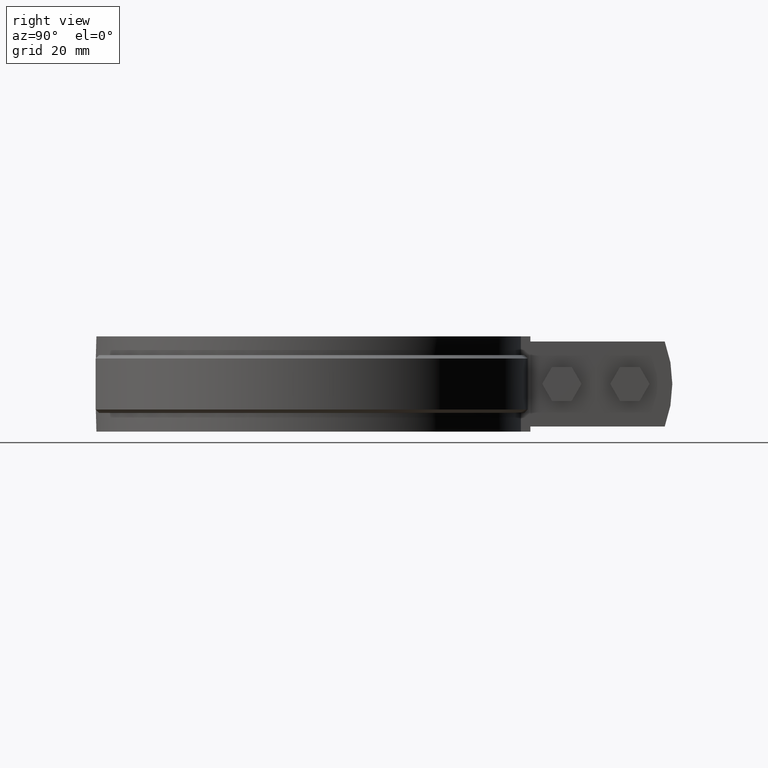
[diagram: clean part render]
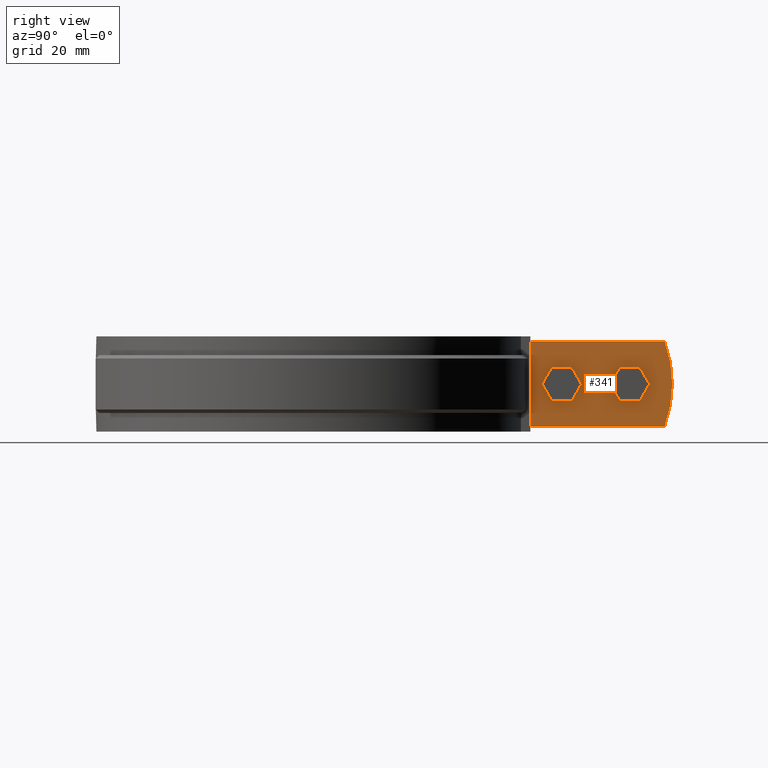
[diagram: same view with one face highlighted and labeled with its STEP entity id]
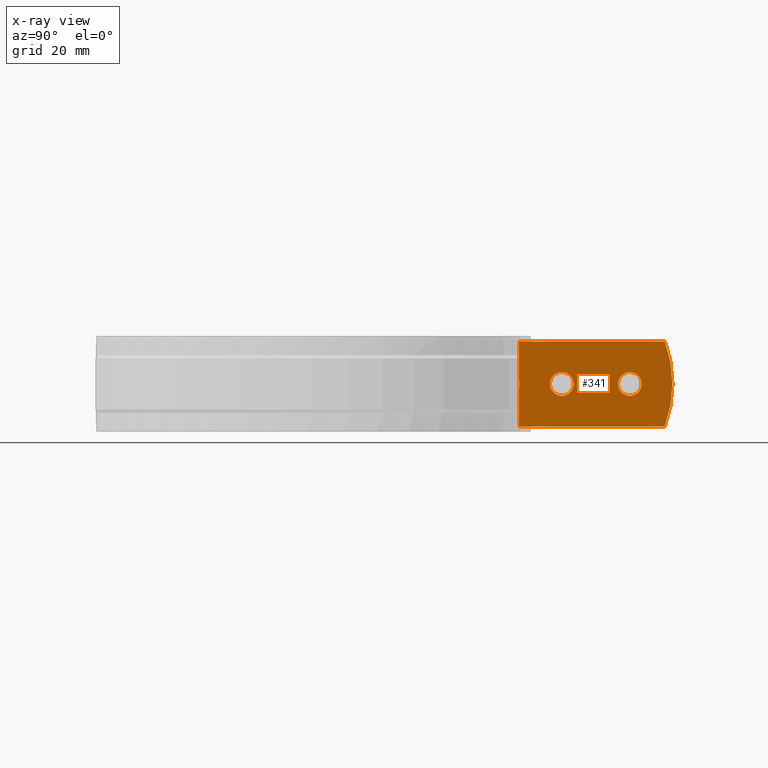
[diagram: x-ray of the same camera — body ghosted, the highlighted face saturated]
A machine part, right view. The second image highlights one B-rep face of the part: STEP entity #341.
The next image is the same camera in x-ray: the body ghosted, the highlighted face saturated — about 0% of this face is hidden behind the body in this view.
In plain terms, the highlighted planar face has unit normal (1, 0, 0).
Its self-contained STEP definition (entity closure, byte-faithful):
#341 = ADVANCED_FACE( '', ( #562, #563, #564 ), #565, .T. );
#562 = FACE_OUTER_BOUND( '', #1157, .T. );
#563 = FACE_BOUND( '', #1158, .T. );
#564 = FACE_BOUND( '', #1159, .T. );
#565 = PLANE( '', #1160 );
#1157 = EDGE_LOOP( '', ( #2319, #2320, #2321, #2322, #2323, #2324 ) );
#1158 = EDGE_LOOP( '', ( #2325 ) );
#1159 = EDGE_LOOP( '', ( #2326 ) );
#1160 = AXIS2_PLACEMENT_3D( '', #2327, #2328, #2329 );
#2319 = ORIENTED_EDGE( '', *, *, #3983, .F. );
#2320 = ORIENTED_EDGE( '', *, *, #3973, .F. );
#2321 = ORIENTED_EDGE( '', *, *, #3898, .T. );
#2322 = ORIENTED_EDGE( '', *, *, #3910, .T. );
#2323 = ORIENTED_EDGE( '', *, *, #3926, .F. );
#2324 = ORIENTED_EDGE( '', *, *, #3956, .F. );
#2325 = ORIENTED_EDGE( '', *, *, #3984, .T. );
#2326 = ORIENTED_EDGE( '', *, *, #3980, .T. );
#2327 = CARTESIAN_POINT( '', ( 5.00000000000000, 61.7545342464827, -12.5000000000000 ) );
#2328 = DIRECTION( '', ( 1.00000000000000, 2.34067589742701E-049, 3.79805155346016E-033 ) );
#2329 = DIRECTION( '', ( 0.000000000000000, 1.00000000000000, -6.16283340149655E-017 ) );
#3898 = EDGE_CURVE( '', #4398, #4396, #4399, .T. );
#3910 = EDGE_CURVE( '', #4396, #4417, #4419, .T. );
#3926 = EDGE_CURVE( '', #4447, #4417, #4449, .F. );
#3956 = EDGE_CURVE( '', #4501, #4447, #4503, .T. );
#3973 = EDGE_CURVE( '', #4398, #4527, #4529, .T. );
#3980 = EDGE_CURVE( '', #4540, #4540, #4541, .F. );
#3983 = EDGE_CURVE( '', #4527, #4501, #4544, .T. );
#3984 = EDGE_CURVE( '', #4545, #4545, #4546, .F. );
#4396 = VERTEX_POINT( '', #5209 );
#4398 = VERTEX_POINT( '', #5212 );
#4399 = LINE( '', #5213, #5214 );
#4417 = VERTEX_POINT( '', #5398 );
#4419 = CIRCLE( '', #5401, 36.0000000000000 );
#4447 = VERTEX_POINT( '', #5523 );
#4449 = LINE( '', #5525, #5526 );
#4501 = VERTEX_POINT( '', #5971 );
#4503 = LINE( '', #5988, #5989 );
#4527 = VERTEX_POINT( '', #6064 );
#4529 = LINE( '', #6081, #6082 );
#4540 = VERTEX_POINT( '', #6155 );
#4541 = CIRCLE( '', #6156, 3.50000000000000 );
#4544 = B_SPLINE_CURVE_WITH_KNOTS( '', 3, ( #6193, #6194, #6195, #6196, #6197, #6198, #6199, #6200 ), .UNSPECIFIED., .F., .F., ( 4, 2, 2, 4 ), ( 2.60208521396521E-018, 0.00149837378309849, 0.00224756067464773, 0.00299674756619698 ), .UNSPECIFIED. );
#4545 = VERTEX_POINT( '', #6201 );
#4546 = CIRCLE( '', #6202, 3.50000000000000 );
#5209 = CARTESIAN_POINT( '', ( 5.00000000000000, 104.662009613637, -12.5000000000000 ) );
#5212 = CARTESIAN_POINT( '', ( 5.00000000000000, 61.7545342464827, -12.5000000000000 ) );
#5213 = CARTESIAN_POINT( '', ( 5.00000000000000, 61.7545342464827, -12.5000000000000 ) );
#5214 = VECTOR( '', #8054, 1000.00000000000 );
#5398 = CARTESIAN_POINT( '', ( 5.00000000000000, 104.662009613637, 12.5000000000000 ) );
#5401 = AXIS2_PLACEMENT_3D( '', #8070, #8071, #8072 );
#5523 = CARTESIAN_POINT( '', ( 5.00000000000000, 61.7545342464827, 12.5000000000000 ) );
#5525 = CARTESIAN_POINT( '', ( 5.00000000000000, 61.7545342464827, 12.5000000000000 ) );
#5526 = VECTOR( '', #8091, 1000.00000000000 );
#5971 = CARTESIAN_POINT( '', ( 5.00000000000000, 61.7545342464827, 1.49291615203442 ) );
#5988 = CARTESIAN_POINT( '', ( 5.00000000000000, 61.7545342464827, -12.5000000000000 ) );
#5989 = VECTOR( '', #8123, 1000.00000000000 );
#6064 = CARTESIAN_POINT( '', ( 5.00000000000000, 61.7545342464827, -1.49291615203029 ) );
#6081 = CARTESIAN_POINT( '', ( 5.00000000000000, 61.7545342464827, -12.5000000000000 ) );
#6082 = VECTOR( '', #8144, 1000.00000000000 );
#6155 = CARTESIAN_POINT( '', ( 5.00000000000000, 74.4018259648470, -3.50000000000000 ) );
#6156 = AXIS2_PLACEMENT_3D( '', #8145, #8146, #8147 );
#6193 = CARTESIAN_POINT( '', ( 5.00000000000000, 61.7545342464827, -1.49291615203029 ) );
#6194 = CARTESIAN_POINT( '', ( 5.00000000000001, 61.8820440775209, -1.00264306649014 ) );
#6195 = CARTESIAN_POINT( '', ( 4.99999999999999, 61.9470027373306, -0.506944265545390 ) );
#6196 = CARTESIAN_POINT( '', ( 4.99999999999999, 61.9477448830672, 0.244991374826574 ) );
#6197 = CARTESIAN_POINT( '', ( 5.00000000000000, 61.9313736301201, 0.498454618103373 ) );
#6198 = CARTESIAN_POINT( '', ( 5.00000000000000, 61.8665441762539, 0.999736569771089 ) );
#6199 = CARTESIAN_POINT( '', ( 5.00000000000000, 61.8183196193486, 1.24766250129482 ) );
#6200 = CARTESIAN_POINT( '', ( 5.00000000000000, 61.7545342464827, 1.49291615203441 ) );
#6201 = CARTESIAN_POINT( '', ( 5.00000000000000, 94.4018259648470, -3.50000000000000 ) );
#6202 = AXIS2_PLACEMENT_3D( '', #8149, #8150, #8151 );
#8054 = DIRECTION( '', ( -2.34067589742701E-049, 1.00000000000000, 0.000000000000000 ) );
#8070 = CARTESIAN_POINT( '', ( 5.00000000000000, 70.9018259648470, -2.77555756156289E-014 ) );
#8071 = DIRECTION( '', ( 1.00000000000000, 2.34067589742701E-049, 3.79805155346016E-033 ) );
#8072 = DIRECTION( '', ( 3.79805155346016E-033, 0.000000000000000, -1.00000000000000 ) );
#8091 = DIRECTION( '', ( 2.34067589742701E-049, -1.00000000000000, 0.000000000000000 ) );
#8123 = DIRECTION( '', ( 0.000000000000000, 0.000000000000000, 1.00000000000000 ) );
#8144 = DIRECTION( '', ( 0.000000000000000, 0.000000000000000, 1.00000000000000 ) );
#8145 = CARTESIAN_POINT( '', ( 5.00000000000000, 74.4018259648470, -1.73472347597681E-015 ) );
#8146 = DIRECTION( '', ( 1.00000000000000, 2.34067589742701E-049, 3.79805155346016E-033 ) );
#8147 = DIRECTION( '', ( 3.79805155346016E-033, 0.000000000000000, -1.00000000000000 ) );
#8149 = CARTESIAN_POINT( '', ( 5.00000000000000, 94.4018259648470, -1.73472347597681E-015 ) );
#8150 = DIRECTION( '', ( 1.00000000000000, 2.34067589742701E-049, 3.79805155346016E-033 ) );
#8151 = DIRECTION( '', ( 3.79805155346016E-033, 0.000000000000000, -1.00000000000000 ) );